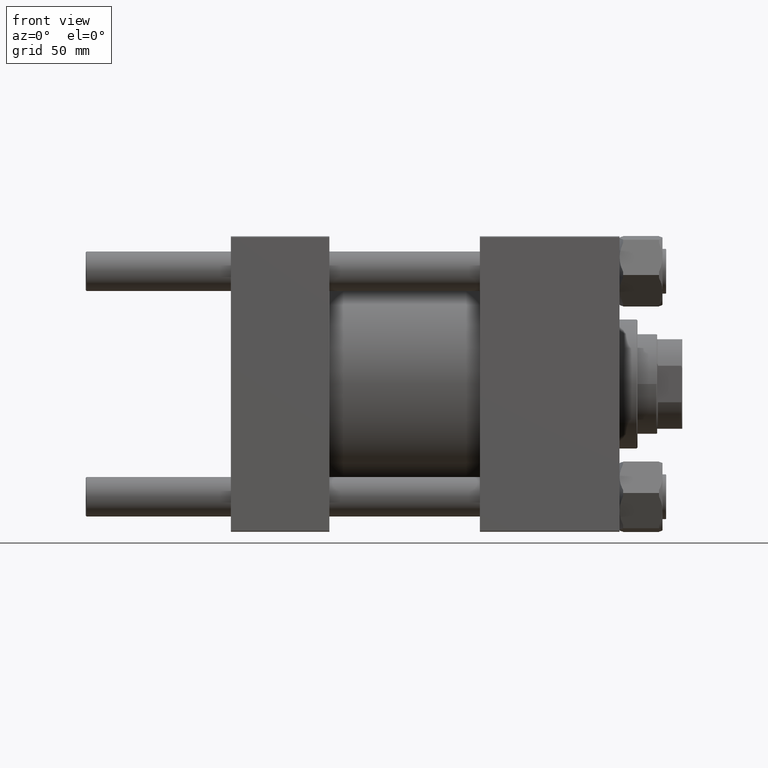
[diagram: clean part render]
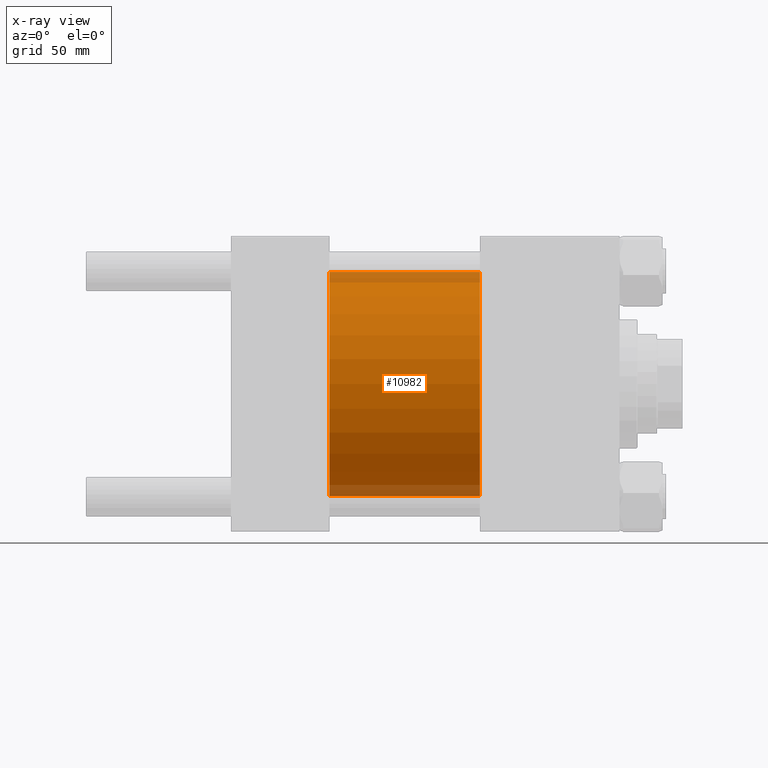
[diagram: x-ray — body ghosted, one internal face saturated and labeled with its STEP entity id]
A machine part, front view, then the same camera in x-ray: the body is ghosted and one INTERNAL B-rep face — a face not visible from any outside direction — is saturated and labeled: STEP entity #10982.
In plain terms, the highlighted cylindrical surface (partial cylindrical patch) has radius 62.5 mm, axis along (-1, -0, -0).
Its self-contained STEP definition (entity closure, byte-faithful):
#158 = CARTESIAN_POINT ( 'NONE',  ( 139.0000000000000000, 7.654042494670956226E-15, -62.50000000000000000 ) ) ;
#698 = DIRECTION ( 'NONE',  ( -1.000000000000000000, -0.000000000000000000, -0.000000000000000000 ) ) ;
#1193 = ORIENTED_EDGE ( 'NONE', *, *, #23799, .F. ) ;
#3381 = AXIS2_PLACEMENT_3D ( 'NONE', #30968, #10322, #25870 ) ;
#3850 = AXIS2_PLACEMENT_3D ( 'NONE', #35759, #47249, #4904 ) ;
#4289 = CYLINDRICAL_SURFACE ( 'NONE', #17373, 62.50000000000000000 ) ;
#4405 = ORIENTED_EDGE ( 'NONE', *, *, #26929, .T. ) ;
#4544 = DIRECTION ( 'NONE',  ( 0.000000000000000000, 0.000000000000000000, 1.000000000000000000 ) ) ;
#4904 = DIRECTION ( 'NONE',  ( 0.000000000000000000, 0.000000000000000000, -1.000000000000000000 ) ) ;
#6202 = EDGE_CURVE ( 'NONE', #26533, #9939, #30288, .T. ) ;
#9485 = CARTESIAN_POINT ( 'NONE',  ( 139.0000000000000000, 7.654042494670956226E-15, -62.50000000000000000 ) ) ;
#9939 = VERTEX_POINT ( 'NONE', #9485 ) ;
#10322 = DIRECTION ( 'NONE',  ( 1.000000000000000000, 0.000000000000000000, 0.000000000000000000 ) ) ;
#10982 = ADVANCED_FACE ( 'NONE', ( #11927 ), #4289, .F. ) ;
#11927 = FACE_OUTER_BOUND ( 'NONE', #24098, .T. ) ;
#12688 = DIRECTION ( 'NONE',  ( -1.000000000000000000, -0.000000000000000000, -0.000000000000000000 ) ) ;
#17373 = AXIS2_PLACEMENT_3D ( 'NONE', #39470, #698, #4544 ) ;
#18759 = ORIENTED_EDGE ( 'NONE', *, *, #39091, .F. ) ;
#20532 = LINE ( 'NONE', #158, #49592 ) ;
#23799 = EDGE_CURVE ( 'NONE', #34220, #47480, #45384, .T. ) ;
#24098 = EDGE_LOOP ( 'NONE', ( #29476, #4405, #1193, #18759 ) ) ;
#25870 = DIRECTION ( 'NONE',  ( 0.000000000000000000, 0.000000000000000000, -1.000000000000000000 ) ) ;
#26533 = VERTEX_POINT ( 'NONE', #28835 ) ;
#26929 = EDGE_CURVE ( 'NONE', #9939, #47480, #20532, .T. ) ;
#28835 = CARTESIAN_POINT ( 'NONE',  ( 139.0000000000000000, 0.000000000000000000, 62.50000000000000000 ) ) ;
#29476 = ORIENTED_EDGE ( 'NONE', *, *, #6202, .T. ) ;
#30288 = CIRCLE ( 'NONE', #3381, 62.50000000000000000 ) ;
#30968 = CARTESIAN_POINT ( 'NONE',  ( 139.0000000000000000, 0.000000000000000000, 0.000000000000000000 ) ) ;
#33942 = CARTESIAN_POINT ( 'NONE',  ( 55.00000000000000000, 7.654042494670956226E-15, -62.50000000000000000 ) ) ;
#34220 = VERTEX_POINT ( 'NONE', #45779 ) ;
#35759 = CARTESIAN_POINT ( 'NONE',  ( 55.00000000000000000, 0.000000000000000000, 0.000000000000000000 ) ) ;
#39091 = EDGE_CURVE ( 'NONE', #26533, #34220, #44301, .T. ) ;
#39470 = CARTESIAN_POINT ( 'NONE',  ( 139.0000000000000000, 0.000000000000000000, 0.000000000000000000 ) ) ;
#40476 = CARTESIAN_POINT ( 'NONE',  ( 139.0000000000000000, 0.000000000000000000, 62.50000000000000000 ) ) ;
#44099 = VECTOR ( 'NONE', #12688, 1000.000000000000000 ) ;
#44301 = LINE ( 'NONE', #40476, #44099 ) ;
#45384 = CIRCLE ( 'NONE', #3850, 62.50000000000000000 ) ;
#45779 = CARTESIAN_POINT ( 'NONE',  ( 55.00000000000000000, 0.000000000000000000, 62.50000000000000000 ) ) ;
#47249 = DIRECTION ( 'NONE',  ( 1.000000000000000000, 0.000000000000000000, 0.000000000000000000 ) ) ;
#47480 = VERTEX_POINT ( 'NONE', #33942 ) ;
#47607 = DIRECTION ( 'NONE',  ( -1.000000000000000000, -0.000000000000000000, -0.000000000000000000 ) ) ;
#49592 = VECTOR ( 'NONE', #47607, 1000.000000000000000 ) ;